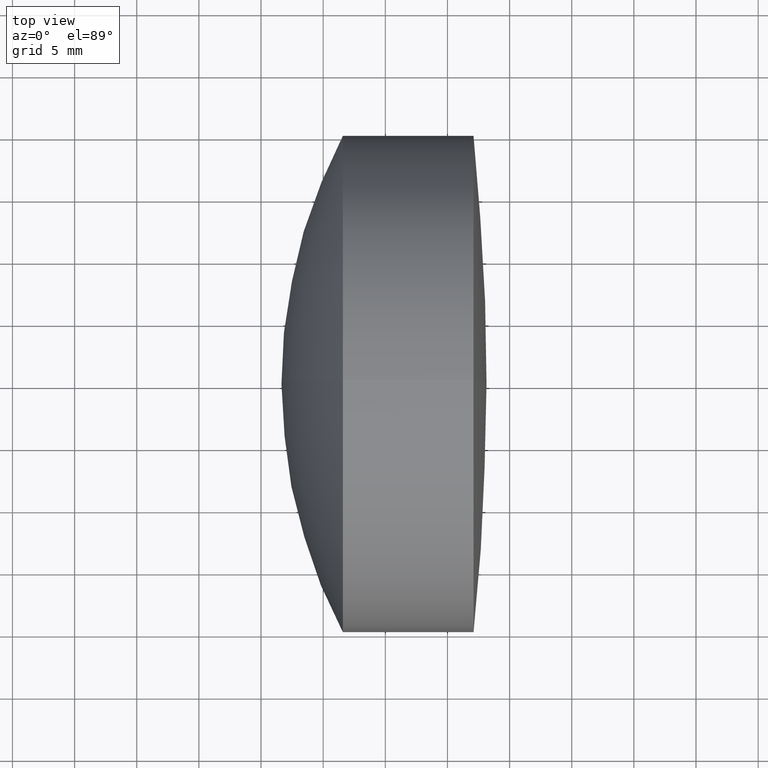
[diagram: clean part render]
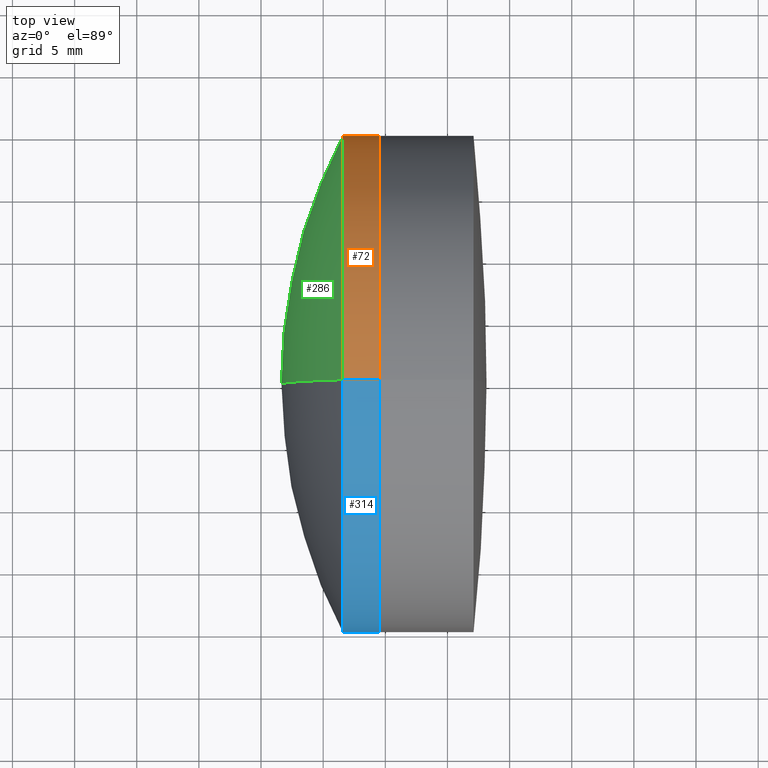
[diagram: same view with three faces highlighted in distinct colors, each labeled with its STEP entity id]
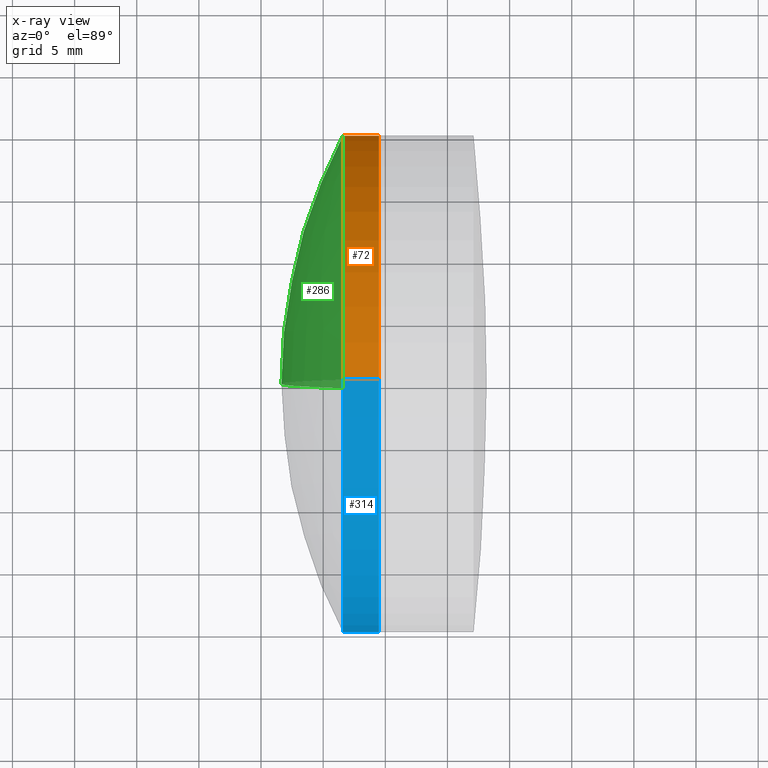
[diagram: x-ray of the same camera — body ghosted, the three highlighted faces saturated]
A machine part, top view with three faces highlighted in distinct colors.
The next image is the same camera in x-ray (body ghosted, the three faces saturated) — at least one of them is partly hidden behind the body in this view.
Their STEP definitions:

[orange] entity #72 — the highlighted cylindrical surface (partial cylindrical patch) has radius 20 mm, axis along (-1, -0, -0).
#13 = ORIENTED_EDGE ( 'NONE', *, *, #67, .T. ) ;
#22 = AXIS2_PLACEMENT_3D ( 'NONE', #299, #296, #287 ) ;
#29 = VERTEX_POINT ( 'NONE', #194 ) ;
#34 = DIRECTION ( 'NONE',  ( 0.0000000000000000000, 0.0000000000000000000, 1.000000000000000000 ) ) ;
#36 = ORIENTED_EDGE ( 'NONE', *, *, #104, .T. ) ;
#44 = VERTEX_POINT ( 'NONE', #283 ) ;
#48 = FACE_OUTER_BOUND ( 'NONE', #70, .T. ) ;
#59 = CARTESIAN_POINT ( 'NONE',  ( 124.5233095260452400, 0.0000000000000000000, 0.0000000000000000000 ) ) ;
#67 = EDGE_CURVE ( 'NONE', #29, #179, #218, .T. ) ;
#68 = AXIS2_PLACEMENT_3D ( 'NONE', #59, #139, #282 ) ;
#70 = EDGE_LOOP ( 'NONE', ( #36, #13, #211, #235 ) ) ;
#72 = ADVANCED_FACE ( 'NONE', ( #48 ), #246, .T. ) ;
#79 = DIRECTION ( 'NONE',  ( -1.000000000000000000, -0.0000000000000000000, -0.0000000000000000000 ) ) ;
#83 = CARTESIAN_POINT ( 'NONE',  ( 256.5849109042255200, 0.0000000000000000000, -20.00000000000000400 ) ) ;
#89 = AXIS2_PLACEMENT_3D ( 'NONE', #171, #79, #34 ) ;
#98 = CARTESIAN_POINT ( 'NONE',  ( 124.5233095260452400, 0.0000000000000000000, 20.00000000000000700 ) ) ;
#104 = EDGE_CURVE ( 'NONE', #44, #29, #243, .T. ) ;
#118 = DIRECTION ( 'NONE',  ( -1.000000000000000000, -0.0000000000000000000, -0.0000000000000000000 ) ) ;
#139 = DIRECTION ( 'NONE',  ( -1.000000000000000000, -0.0000000000000000000, -0.0000000000000000000 ) ) ;
#171 = CARTESIAN_POINT ( 'NONE',  ( 259.4867653301869300, 0.0000000000000000000, 0.0000000000000000000 ) ) ;
#179 = VERTEX_POINT ( 'NONE', #83 ) ;
#191 = VECTOR ( 'NONE', #118, 1000.000000000000000 ) ;
#194 = CARTESIAN_POINT ( 'NONE',  ( 259.4867653301869300, 2.449293598294707300E-015, -20.00000000000000700 ) ) ;
#211 = ORIENTED_EDGE ( 'NONE', *, *, #343, .F. ) ;
#218 = LINE ( 'NONE', #231, #334 ) ;
#231 = CARTESIAN_POINT ( 'NONE',  ( 124.5233095260452400, 2.449293598294707300E-015, -20.00000000000000700 ) ) ;
#235 = ORIENTED_EDGE ( 'NONE', *, *, #236, .F. ) ;
#236 = EDGE_CURVE ( 'NONE', #44, #255, #323, .T. ) ;
#243 = CIRCLE ( 'NONE', #89, 20.00000000000000700 ) ;
#246 = CYLINDRICAL_SURFACE ( 'NONE', #68, 20.00000000000000700 ) ;
#255 = VERTEX_POINT ( 'NONE', #332 ) ;
#282 = DIRECTION ( 'NONE',  ( 0.0000000000000000000, 0.0000000000000000000, 1.000000000000000000 ) ) ;
#283 = CARTESIAN_POINT ( 'NONE',  ( 259.4867653301869300, 0.0000000000000000000, 20.00000000000000700 ) ) ;
#287 = DIRECTION ( 'NONE',  ( 0.0000000000000000000, 0.0000000000000000000, 1.000000000000000000 ) ) ;
#296 = DIRECTION ( 'NONE',  ( -1.000000000000000000, -0.0000000000000000000, -0.0000000000000000000 ) ) ;
#299 = CARTESIAN_POINT ( 'NONE',  ( 256.5849109042255200, 0.0000000000000000000, 0.0000000000000000000 ) ) ;
#303 = CIRCLE ( 'NONE', #22, 20.00000000000000700 ) ;
#323 = LINE ( 'NONE', #98, #191 ) ;
#329 = DIRECTION ( 'NONE',  ( -1.000000000000000000, -0.0000000000000000000, -0.0000000000000000000 ) ) ;
#332 = CARTESIAN_POINT ( 'NONE',  ( 256.5849109042255200, -2.449293598294706500E-015, 20.00000000000001100 ) ) ;
#334 = VECTOR ( 'NONE', #329, 1000.000000000000000 ) ;
#343 = EDGE_CURVE ( 'NONE', #255, #179, #303, .T. ) ;

[blue] entity #314 — the highlighted cylindrical surface (partial cylindrical patch) has radius 20 mm, axis along (-1, -0, -0).
#4 = AXIS2_PLACEMENT_3D ( 'NONE', #209, #155, #242 ) ;
#17 = DIRECTION ( 'NONE',  ( 0.0000000000000000000, 0.0000000000000000000, 1.000000000000000000 ) ) ;
#29 = VERTEX_POINT ( 'NONE', #194 ) ;
#32 = DIRECTION ( 'NONE',  ( -1.000000000000000000, -0.0000000000000000000, -0.0000000000000000000 ) ) ;
#44 = VERTEX_POINT ( 'NONE', #283 ) ;
#55 = DIRECTION ( 'NONE',  ( -1.000000000000000000, -0.0000000000000000000, -0.0000000000000000000 ) ) ;
#65 = EDGE_CURVE ( 'NONE', #179, #255, #294, .T. ) ;
#66 = EDGE_LOOP ( 'NONE', ( #276, #110, #342, #262 ) ) ;
#67 = EDGE_CURVE ( 'NONE', #29, #179, #218, .T. ) ;
#73 = CYLINDRICAL_SURFACE ( 'NONE', #4, 20.00000000000000700 ) ;
#83 = CARTESIAN_POINT ( 'NONE',  ( 256.5849109042255200, 0.0000000000000000000, -20.00000000000000400 ) ) ;
#98 = CARTESIAN_POINT ( 'NONE',  ( 124.5233095260452400, 0.0000000000000000000, 20.00000000000000700 ) ) ;
#110 = ORIENTED_EDGE ( 'NONE', *, *, #308, .T. ) ;
#118 = DIRECTION ( 'NONE',  ( -1.000000000000000000, -0.0000000000000000000, -0.0000000000000000000 ) ) ;
#142 = CARTESIAN_POINT ( 'NONE',  ( 256.5849109042255200, 0.0000000000000000000, 0.0000000000000000000 ) ) ;
#155 = DIRECTION ( 'NONE',  ( -1.000000000000000000, -0.0000000000000000000, -0.0000000000000000000 ) ) ;
#179 = VERTEX_POINT ( 'NONE', #83 ) ;
#183 = FACE_OUTER_BOUND ( 'NONE', #66, .T. ) ;
#191 = VECTOR ( 'NONE', #118, 1000.000000000000000 ) ;
#194 = CARTESIAN_POINT ( 'NONE',  ( 259.4867653301869300, 2.449293598294707300E-015, -20.00000000000000700 ) ) ;
#206 = AXIS2_PLACEMENT_3D ( 'NONE', #142, #32, #240 ) ;
#209 = CARTESIAN_POINT ( 'NONE',  ( 124.5233095260452400, 0.0000000000000000000, 0.0000000000000000000 ) ) ;
#218 = LINE ( 'NONE', #231, #334 ) ;
#231 = CARTESIAN_POINT ( 'NONE',  ( 124.5233095260452400, 2.449293598294707300E-015, -20.00000000000000700 ) ) ;
#236 = EDGE_CURVE ( 'NONE', #44, #255, #323, .T. ) ;
#240 = DIRECTION ( 'NONE',  ( 0.0000000000000000000, 0.0000000000000000000, 1.000000000000000000 ) ) ;
#242 = DIRECTION ( 'NONE',  ( 0.0000000000000000000, 0.0000000000000000000, 1.000000000000000000 ) ) ;
#255 = VERTEX_POINT ( 'NONE', #332 ) ;
#262 = ORIENTED_EDGE ( 'NONE', *, *, #65, .F. ) ;
#276 = ORIENTED_EDGE ( 'NONE', *, *, #67, .F. ) ;
#280 = AXIS2_PLACEMENT_3D ( 'NONE', #322, #55, #17 ) ;
#283 = CARTESIAN_POINT ( 'NONE',  ( 259.4867653301869300, 0.0000000000000000000, 20.00000000000000700 ) ) ;
#294 = CIRCLE ( 'NONE', #206, 20.00000000000000700 ) ;
#300 = CIRCLE ( 'NONE', #280, 20.00000000000000700 ) ;
#308 = EDGE_CURVE ( 'NONE', #29, #44, #300, .T. ) ;
#314 = ADVANCED_FACE ( 'NONE', ( #183 ), #73, .T. ) ;
#322 = CARTESIAN_POINT ( 'NONE',  ( 259.4867653301869300, 0.0000000000000000000, 0.0000000000000000000 ) ) ;
#323 = LINE ( 'NONE', #98, #191 ) ;
#329 = DIRECTION ( 'NONE',  ( -1.000000000000000000, -0.0000000000000000000, -0.0000000000000000000 ) ) ;
#332 = CARTESIAN_POINT ( 'NONE',  ( 256.5849109042255200, -2.449293598294706500E-015, 20.00000000000001100 ) ) ;
#334 = VECTOR ( 'NONE', #329, 1000.000000000000000 ) ;
#342 = ORIENTED_EDGE ( 'NONE', *, *, #236, .T. ) ;

[green] entity #286 — the highlighted spherical surface has radius 42.95 mm.
#1 = DIRECTION ( 'NONE',  ( 0.0000000000000000000, 0.0000000000000000000, 1.000000000000000000 ) ) ;
#12 = CIRCLE ( 'NONE', #266, 42.94999999999998200 ) ;
#22 = AXIS2_PLACEMENT_3D ( 'NONE', #299, #296, #287 ) ;
#52 = DIRECTION ( 'NONE',  ( 0.0000000000000000000, -1.000000000000000000, -1.224646799147353200E-016 ) ) ;
#54 = EDGE_LOOP ( 'NONE', ( #271, #201, #97 ) ) ;
#57 = FACE_OUTER_BOUND ( 'NONE', #54, .T. ) ;
#83 = CARTESIAN_POINT ( 'NONE',  ( 256.5849109042255200, 0.0000000000000000000, -20.00000000000000400 ) ) ;
#97 = ORIENTED_EDGE ( 'NONE', *, *, #272, .T. ) ;
#121 = CARTESIAN_POINT ( 'NONE',  ( 294.5941532013300200, 0.0000000000000000000, 7.363275609329438300E-015 ) ) ;
#131 = DIRECTION ( 'NONE',  ( 0.0000000000000000000, 1.224646799147353200E-016, -1.000000000000000000 ) ) ;
#136 = SPHERICAL_SURFACE ( 'NONE', #260, 42.94999999999998200 ) ;
#162 = VERTEX_POINT ( 'NONE', #304 ) ;
#179 = VERTEX_POINT ( 'NONE', #83 ) ;
#190 = DIRECTION ( 'NONE',  ( 0.0000000000000000000, 0.0000000000000000000, -1.000000000000000000 ) ) ;
#201 = ORIENTED_EDGE ( 'NONE', *, *, #343, .T. ) ;
#213 = CARTESIAN_POINT ( 'NONE',  ( 294.5941532013300200, 0.0000000000000000000, 7.363275609329438300E-015 ) ) ;
#217 = CARTESIAN_POINT ( 'NONE',  ( 294.5941532013300200, 0.0000000000000000000, 7.363275609329438300E-015 ) ) ;
#228 = AXIS2_PLACEMENT_3D ( 'NONE', #121, #269, #1 ) ;
#252 = EDGE_CURVE ( 'NONE', #255, #162, #12, .T. ) ;
#255 = VERTEX_POINT ( 'NONE', #332 ) ;
#260 = AXIS2_PLACEMENT_3D ( 'NONE', #217, #347, #190 ) ;
#266 = AXIS2_PLACEMENT_3D ( 'NONE', #213, #52, #131 ) ;
#269 = DIRECTION ( 'NONE',  ( 0.0000000000000000000, 1.000000000000000000, -0.0000000000000000000 ) ) ;
#271 = ORIENTED_EDGE ( 'NONE', *, *, #252, .F. ) ;
#272 = EDGE_CURVE ( 'NONE', #179, #162, #340, .T. ) ;
#286 = ADVANCED_FACE ( 'NONE', ( #57 ), #136, .T. ) ;
#287 = DIRECTION ( 'NONE',  ( 0.0000000000000000000, 0.0000000000000000000, 1.000000000000000000 ) ) ;
#296 = DIRECTION ( 'NONE',  ( -1.000000000000000000, -0.0000000000000000000, -0.0000000000000000000 ) ) ;
#299 = CARTESIAN_POINT ( 'NONE',  ( 256.5849109042255200, 0.0000000000000000000, 0.0000000000000000000 ) ) ;
#303 = CIRCLE ( 'NONE', #22, 20.00000000000000700 ) ;
#304 = CARTESIAN_POINT ( 'NONE',  ( 251.6441532013300600, 0.0000000000000000000, 4.733346608160498000E-015 ) ) ;
#332 = CARTESIAN_POINT ( 'NONE',  ( 256.5849109042255200, -2.449293598294706500E-015, 20.00000000000001100 ) ) ;
#340 = CIRCLE ( 'NONE', #228, 42.94999999999998200 ) ;
#343 = EDGE_CURVE ( 'NONE', #255, #179, #303, .T. ) ;
#347 = DIRECTION ( 'NONE',  ( -0.0000000000000000000, -1.000000000000000000, -0.0000000000000000000 ) ) ;